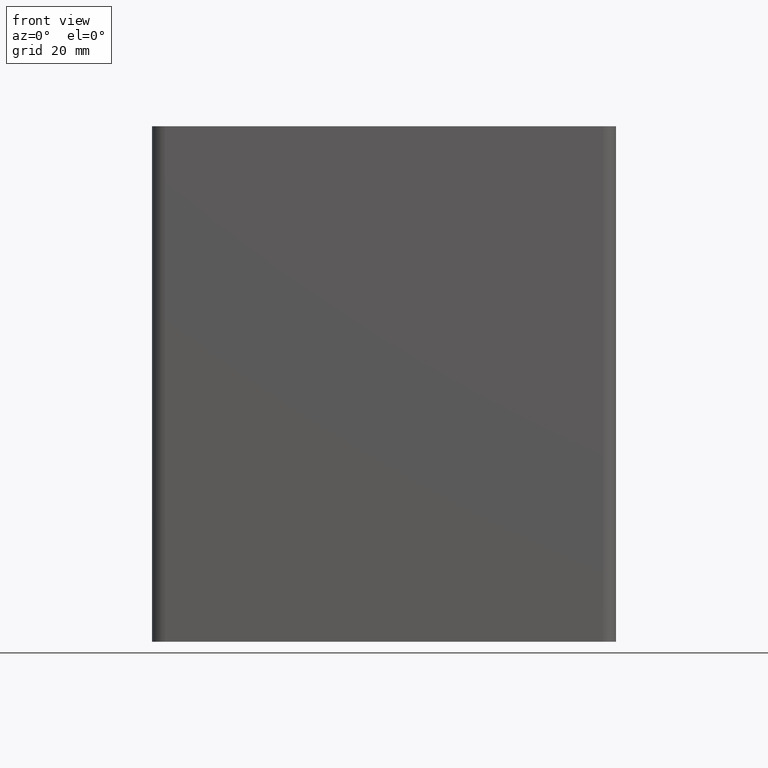
[diagram: clean part render]
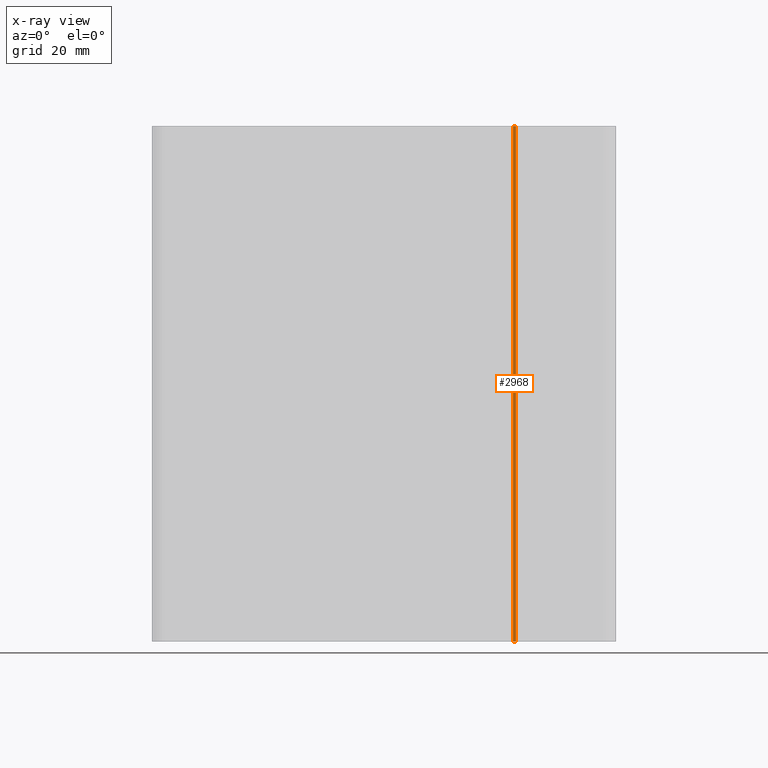
[diagram: x-ray — body ghosted, one internal face saturated and labeled with its STEP entity id]
A machine part, front view, then the same camera in x-ray: the body is ghosted and one INTERNAL B-rep face — a face not visible from any outside direction — is saturated and labeled: STEP entity #2968.
In plain terms, the highlighted cylindrical surface (edge-blend (fillet) strip) has radius 0.5 mm, axis along (0, 0, 1).
Its self-contained STEP definition (entity closure, byte-faithful):
#113=CIRCLE('',#3205,0.499999999999993);
#114=CIRCLE('',#3206,0.499999999999993);
#207=CYLINDRICAL_SURFACE('',#3204,0.499999999999993);
#328=FACE_OUTER_BOUND('',#478,.T.);
#478=EDGE_LOOP('',(#2283,#2284,#2285,#2286));
#748=LINE('',#4765,#1056);
#749=LINE('',#4771,#1057);
#1056=VECTOR('',#3870,100.);
#1057=VECTOR('',#3877,100.);
#1353=VERTEX_POINT('',#4762);
#1354=VERTEX_POINT('',#4764);
#1355=VERTEX_POINT('',#4768);
#1356=VERTEX_POINT('',#4770);
#1743=EDGE_CURVE('',#1354,#1353,#748,.T.);
#1745=EDGE_CURVE('',#1355,#1353,#113,.T.);
#1746=EDGE_CURVE('',#1355,#1356,#749,.T.);
#1747=EDGE_CURVE('',#1354,#1356,#114,.T.);
#2283=ORIENTED_EDGE('',*,*,#1745,.F.);
#2284=ORIENTED_EDGE('',*,*,#1746,.T.);
#2285=ORIENTED_EDGE('',*,*,#1747,.F.);
#2286=ORIENTED_EDGE('',*,*,#1743,.T.);
#2968=ADVANCED_FACE('',(#328),#207,.T.);
#3204=AXIS2_PLACEMENT_3D('',#4767,#3873,#3874);
#3205=AXIS2_PLACEMENT_3D('',#4769,#3875,#3876);
#3206=AXIS2_PLACEMENT_3D('',#4772,#3878,#3879);
#3870=DIRECTION('',(0.,0.,1.));
#3873=DIRECTION('center_axis',(0.,0.,1.));
#3874=DIRECTION('ref_axis',(-0.499999999999978,-0.866025403784451,0.));
#3875=DIRECTION('center_axis',(0.,0.,1.));
#3876=DIRECTION('ref_axis',(-0.499999999999978,-0.866025403784451,0.));
#3877=DIRECTION('',(0.,0.,-1.));
#3878=DIRECTION('center_axis',(0.,0.,-1.));
#3879=DIRECTION('ref_axis',(-0.499999999999978,-0.866025403784451,0.));
#4762=CARTESIAN_POINT('',(24.9814775765519,-2.67670862012849,100.));
#4764=CARTESIAN_POINT('',(24.9814775765519,-2.67670862012849,0.));
#4765=CARTESIAN_POINT('',(24.9814775765519,-2.67670862012849,0.));
#4767=CARTESIAN_POINT('Origin',(25.321406011696,-3.04338103384471,0.));
#4768=CARTESIAN_POINT('',(25.571406011696,-2.61036833195249,100.));
#4769=CARTESIAN_POINT('Origin',(25.321406011696,-3.04338103384471,100.));
#4770=CARTESIAN_POINT('',(25.571406011696,-2.61036833195249,0.));
#4771=CARTESIAN_POINT('',(25.571406011696,-2.61036833195249,0.));
#4772=CARTESIAN_POINT('Origin',(25.321406011696,-3.04338103384471,0.));